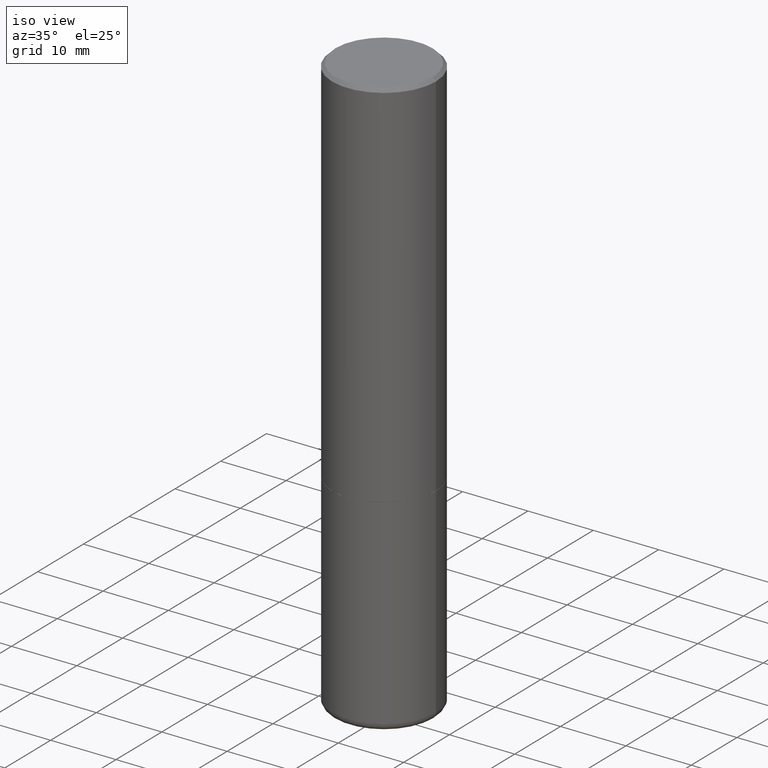
[diagram: clean part render]
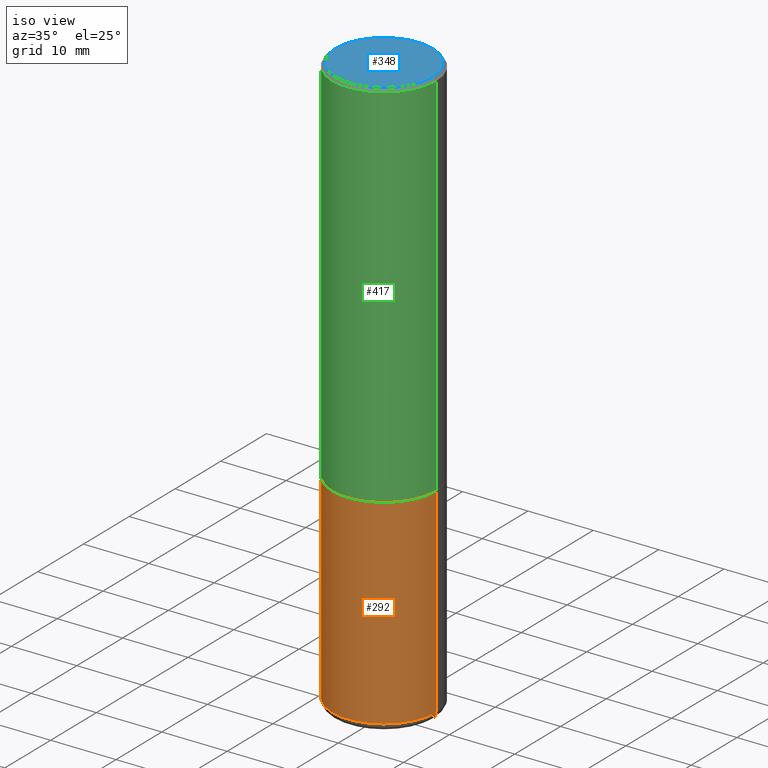
[diagram: same view with three faces highlighted in distinct colors, each labeled with its STEP entity id]
A machine part, iso view with three faces highlighted in distinct colors.
Their STEP definitions:

[orange] entity #292 — the highlighted cylindrical surface (partial cylindrical patch) has radius 7.9375 mm, axis along (-0, 0, 1).
#15 = VERTEX_POINT ( 'NONE', #436 ) ;
#28 = ORIENTED_EDGE ( 'NONE', *, *, #383, .F. ) ;
#49 = EDGE_CURVE ( 'NONE', #297, #419, #260, .T. ) ;
#68 = EDGE_CURVE ( 'NONE', #196, #419, #377, .T. ) ;
#72 = FACE_OUTER_BOUND ( 'NONE', #258, .T. ) ;
#76 = CARTESIAN_POINT ( 'NONE',  ( -0.3125000000000000000, 2.220446049250313081E-15, -1.537167215704658232E-29 ) ) ;
#79 = CARTESIAN_POINT ( 'NONE',  ( 0.3125000000000000000, -1.424545918540237458E-14, -3.455061670936044216 ) ) ;
#95 = DIRECTION ( 'NONE',  ( -2.445468806185136877E-29, 3.491481338843145188E-15, 1.000000000000000000 ) ) ;
#97 = EDGE_CURVE ( 'NONE', #15, #297, #391, .T. ) ;
#108 = CYLINDRICAL_SURFACE ( 'NONE', #309, 0.3125000000000000000 ) ;
#133 = DIRECTION ( 'NONE',  ( 1.000000000000000000, -6.982962677686269077E-15, 0.000000000000000000 ) ) ;
#135 = AXIS2_PLACEMENT_3D ( 'NONE', #399, #228, #192 ) ;
#149 = CARTESIAN_POINT ( 'NONE',  ( 0.000000000000000000, 0.000000000000000000, 0.000000000000000000 ) ) ;
#150 = ORIENTED_EDGE ( 'NONE', *, *, #97, .T. ) ;
#158 = AXIS2_PLACEMENT_3D ( 'NONE', #277, #344, #133 ) ;
#192 = DIRECTION ( 'NONE',  ( 1.000000000000000000, -6.982962677686265133E-15, 0.000000000000000000 ) ) ;
#196 = VERTEX_POINT ( 'NONE', #378 ) ;
#228 = DIRECTION ( 'NONE',  ( -2.445468806185136597E-29, 3.491481338843145583E-15, 1.000000000000000000 ) ) ;
#252 = DIRECTION ( 'NONE',  ( -2.445468806185136877E-29, 3.491481338843145188E-15, 1.000000000000000000 ) ) ;
#253 = ORIENTED_EDGE ( 'NONE', *, *, #49, .T. ) ;
#256 = DIRECTION ( 'NONE',  ( 1.000000000000000000, -6.982962677686266711E-15, 4.876176775795936353E-29 ) ) ;
#258 = EDGE_LOOP ( 'NONE', ( #28, #150, #253, #329 ) ) ;
#260 = LINE ( 'NONE', #360, #332 ) ;
#277 = CARTESIAN_POINT ( 'NONE',  ( 8.449245539719989979E-29, -1.206328334862541465E-14, -3.455061670936044216 ) ) ;
#292 = ADVANCED_FACE ( 'NONE', ( #72 ), #108, .T. ) ;
#297 = VERTEX_POINT ( 'NONE', #79 ) ;
#309 = AXIS2_PLACEMENT_3D ( 'NONE', #149, #386, #256 ) ;
#329 = ORIENTED_EDGE ( 'NONE', *, *, #68, .F. ) ;
#332 = VECTOR ( 'NONE', #95, 39.37007874015748143 ) ;
#344 = DIRECTION ( 'NONE',  ( -2.445468806185136597E-29, 3.491481338843145583E-15, 1.000000000000000000 ) ) ;
#360 = CARTESIAN_POINT ( 'NONE',  ( 0.3125000000000000000, -2.182175836776958347E-15, 1.523805242436230075E-29 ) ) ;
#377 = CIRCLE ( 'NONE', #135, 0.3125000000000000000 ) ;
#378 = CARTESIAN_POINT ( 'NONE',  ( -0.3125000000000000000, -7.739112131260931893E-15, -2.249999999999999556 ) ) ;
#383 = EDGE_CURVE ( 'NONE', #15, #196, #418, .T. ) ;
#386 = DIRECTION ( 'NONE',  ( -2.445468806185136597E-29, 3.491481338843145583E-15, 1.000000000000000000 ) ) ;
#391 = CIRCLE ( 'NONE', #158, 0.3125000000000000000 ) ;
#396 = VECTOR ( 'NONE', #252, 39.37007874015748143 ) ;
#399 = CARTESIAN_POINT ( 'NONE',  ( 5.502304813916556222E-29, -7.855833012397075293E-15, -2.249999999999999556 ) ) ;
#412 = CARTESIAN_POINT ( 'NONE',  ( 0.3125000000000000000, -1.003800884917403364E-14, -2.249999999999999556 ) ) ;
#418 = LINE ( 'NONE', #76, #396 ) ;
#419 = VERTEX_POINT ( 'NONE', #412 ) ;
#436 = CARTESIAN_POINT ( 'NONE',  ( -0.3125000000000000000, -7.739112131260931893E-15, -3.455061670936044216 ) ) ;

[blue] entity #348 — the highlighted planar face has unit normal (0, -0, -1).
#43 = CIRCLE ( 'NONE', #96, 0.2924999999999998157 ) ;
#66 = DIRECTION ( 'NONE',  ( -2.445468806185136597E-29, 3.491481338843145583E-15, 1.000000000000000000 ) ) ;
#89 = AXIS2_PLACEMENT_3D ( 'NONE', #382, #346, #146 ) ;
#96 = AXIS2_PLACEMENT_3D ( 'NONE', #372, #275, #98 ) ;
#98 = DIRECTION ( 'NONE',  ( 1.000000000000000000, -6.982962677686266711E-15, 4.876067333457692840E-29 ) ) ;
#100 = CARTESIAN_POINT ( 'NONE',  ( 0.2924999999999998157, -2.110215457714318748E-15, 4.268512490114932791E-18 ) ) ;
#127 = EDGE_CURVE ( 'NONE', #265, #213, #43, .T. ) ;
#146 = DIRECTION ( 'NONE',  ( -1.000000000000000000, 6.982962677686265922E-15, -4.876176775795935793E-29 ) ) ;
#173 = PLANE ( 'NONE',  #89 ) ;
#174 = FACE_OUTER_BOUND ( 'NONE', #321, .T. ) ;
#206 = CARTESIAN_POINT ( 'NONE',  ( -0.2924999999999998157, 2.077431396611662611E-15, 4.268512490086005323E-18 ) ) ;
#209 = EDGE_CURVE ( 'NONE', #213, #265, #303, .T. ) ;
#213 = VERTEX_POINT ( 'NONE', #206 ) ;
#265 = VERTEX_POINT ( 'NONE', #100 ) ;
#275 = DIRECTION ( 'NONE',  ( -2.445468806185136597E-29, 3.491481338843145583E-15, 1.000000000000000000 ) ) ;
#303 = CIRCLE ( 'NONE', #376, 0.2924999999999998157 ) ;
#305 = DIRECTION ( 'NONE',  ( 1.000000000000000000, -6.982962677686266711E-15, 4.876067333457692840E-29 ) ) ;
#316 = ORIENTED_EDGE ( 'NONE', *, *, #209, .T. ) ;
#321 = EDGE_LOOP ( 'NONE', ( #316, #400 ) ) ;
#346 = DIRECTION ( 'NONE',  ( 2.438088387897960049E-29, -3.491481338843145188E-15, -1.000000000000000000 ) ) ;
#348 = ADVANCED_FACE ( 'NONE', ( #174 ), #173, .F. ) ;
#372 = CARTESIAN_POINT ( 'NONE',  ( -1.043851414335219820E-46, 1.490343170380447200E-32, 4.268512490100411279E-18 ) ) ;
#376 = AXIS2_PLACEMENT_3D ( 'NONE', #408, #66, #305 ) ;
#382 = CARTESIAN_POINT ( 'NONE',  ( 2.042516583223231356E-15, 0.2924999999999998157, -1.019124035366569212E-15 ) ) ;
#400 = ORIENTED_EDGE ( 'NONE', *, *, #127, .T. ) ;
#408 = CARTESIAN_POINT ( 'NONE',  ( -1.043851414335219820E-46, 1.490343170380447200E-32, 4.268512490100411279E-18 ) ) ;

[green] entity #417 — the highlighted cylindrical surface (partial cylindrical patch) has radius 7.9375 mm, axis along (-0, 0, 1).
#6 = VECTOR ( 'NONE', #290, 39.37007874015748143 ) ;
#14 = DIRECTION ( 'NONE',  ( 1.000000000000000000, -6.982962677686266711E-15, 4.876176775795935232E-29 ) ) ;
#18 = VECTOR ( 'NONE', #379, 39.37007874015748143 ) ;
#41 = EDGE_CURVE ( 'NONE', #190, #110, #129, .T. ) ;
#46 = VERTEX_POINT ( 'NONE', #156 ) ;
#58 = ORIENTED_EDGE ( 'NONE', *, *, #154, .F. ) ;
#62 = CARTESIAN_POINT ( 'NONE',  ( 0.3125000000000000000, -1.003451736783519063E-14, -2.248999999999999222 ) ) ;
#70 = CARTESIAN_POINT ( 'NONE',  ( 4.890937612370276662E-31, -6.982962677686296539E-17, -0.02000000000000001776 ) ) ;
#74 = ORIENTED_EDGE ( 'NONE', *, *, #172, .F. ) ;
#85 = ORIENTED_EDGE ( 'NONE', *, *, #148, .T. ) ;
#103 = CARTESIAN_POINT ( 'NONE',  ( 5.499859345110370619E-29, -7.852341531058232286E-15, -2.248999999999999222 ) ) ;
#110 = VERTEX_POINT ( 'NONE', #406 ) ;
#120 = ORIENTED_EDGE ( 'NONE', *, *, #41, .T. ) ;
#129 = LINE ( 'NONE', #299, #6 ) ;
#144 = DIRECTION ( 'NONE',  ( -2.445468806185136597E-29, 3.491481338843145583E-15, 1.000000000000000000 ) ) ;
#148 = EDGE_CURVE ( 'NONE', #367, #190, #170, .T. ) ;
#154 = EDGE_CURVE ( 'NONE', #46, #110, #317, .T. ) ;
#156 = CARTESIAN_POINT ( 'NONE',  ( -0.3124999999999998335, 2.112346210000093866E-15, -0.02000000000000001776 ) ) ;
#167 = DIRECTION ( 'NONE',  ( 1.000000000000000000, -6.982962677686269077E-15, 0.000000000000000000 ) ) ;
#170 = CIRCLE ( 'NONE', #245, 0.3125000000000000000 ) ;
#172 = EDGE_CURVE ( 'NONE', #367, #46, #200, .T. ) ;
#190 = VERTEX_POINT ( 'NONE', #62 ) ;
#200 = LINE ( 'NONE', #207, #18 ) ;
#207 = CARTESIAN_POINT ( 'NONE',  ( -0.3124999999999998890, 2.220446049250312292E-15, -1.537167215704657391E-29 ) ) ;
#234 = DIRECTION ( 'NONE',  ( -2.445468806185136597E-29, 3.491481338843145583E-15, 1.000000000000000000 ) ) ;
#245 = AXIS2_PLACEMENT_3D ( 'NONE', #103, #304, #167 ) ;
#247 = CARTESIAN_POINT ( 'NONE',  ( -0.3125000000000000000, -1.740639529667232739E-15, -2.248999999999999222 ) ) ;
#279 = CYLINDRICAL_SURFACE ( 'NONE', #397, 0.3124999999999998890 ) ;
#290 = DIRECTION ( 'NONE',  ( -2.445468806185136877E-29, 3.491481338843145188E-15, 1.000000000000000000 ) ) ;
#295 = AXIS2_PLACEMENT_3D ( 'NONE', #70, #234, #380 ) ;
#299 = CARTESIAN_POINT ( 'NONE',  ( 0.3124999999999998890, -2.182175836776957558E-15, 1.523805242436229235E-29 ) ) ;
#304 = DIRECTION ( 'NONE',  ( -2.445468806185136597E-29, 3.491481338843145583E-15, 1.000000000000000000 ) ) ;
#317 = CIRCLE ( 'NONE', #295, 0.3124999999999998335 ) ;
#318 = FACE_OUTER_BOUND ( 'NONE', #435, .T. ) ;
#320 = CARTESIAN_POINT ( 'NONE',  ( 0.000000000000000000, 0.000000000000000000, 0.000000000000000000 ) ) ;
#367 = VERTEX_POINT ( 'NONE', #247 ) ;
#379 = DIRECTION ( 'NONE',  ( -2.445468806185136877E-29, 3.491481338843145188E-15, 1.000000000000000000 ) ) ;
#380 = DIRECTION ( 'NONE',  ( 1.000000000000000000, -6.982962677686266711E-15, 0.000000000000000000 ) ) ;
#397 = AXIS2_PLACEMENT_3D ( 'NONE', #320, #144, #14 ) ;
#406 = CARTESIAN_POINT ( 'NONE',  ( 0.3124999999999998335, -2.213735251080465334E-15, -0.02000000000000001776 ) ) ;
#417 = ADVANCED_FACE ( 'NONE', ( #318 ), #279, .T. ) ;
#435 = EDGE_LOOP ( 'NONE', ( #74, #85, #120, #58 ) ) ;